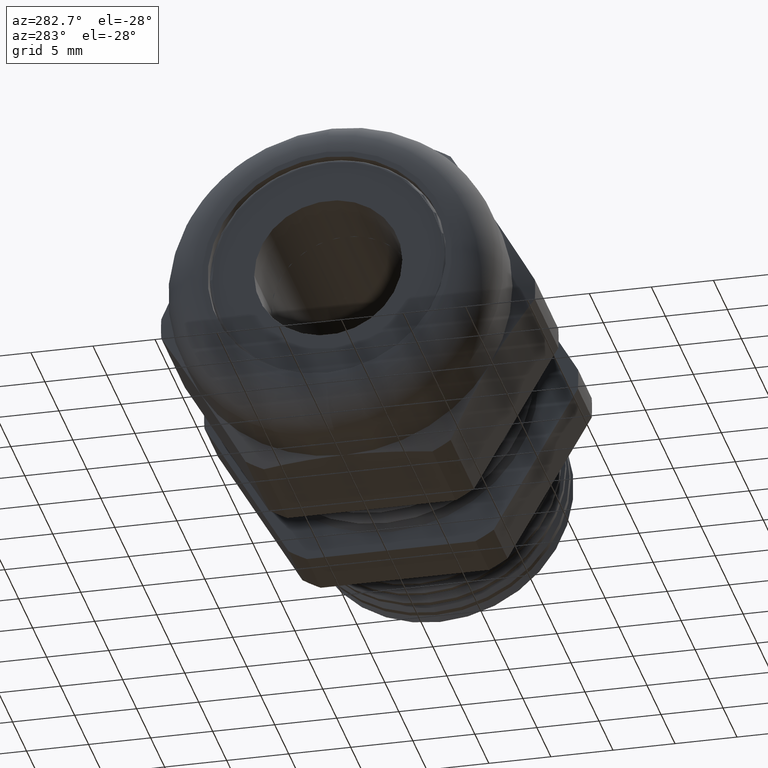
[diagram: clean part render]
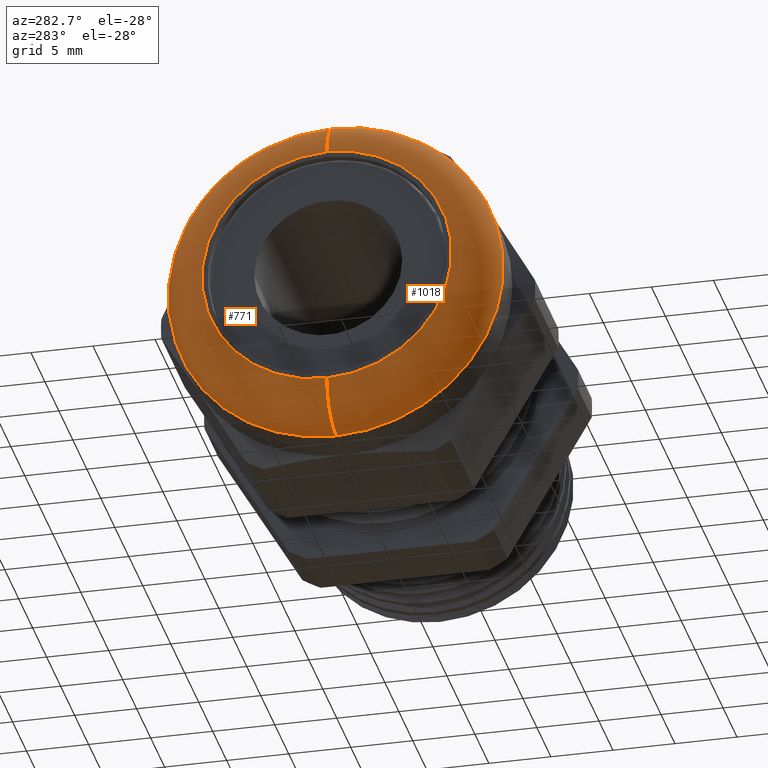
[diagram: same view with one multi-face feature highlighted, each face labeled with its STEP entity id]
A machine part, auxiliary view. The highlighted faces form ONE feature: a constant-radius fillet chain: 2 tangent blend faces with common blend radius 3.3934 mm. The faces share edges in the B-rep.
Their STEP definitions:
[1] entity #771 (Torus):
#765 = VERTEX_POINT ( 'NONE', #2710 ) ;
#769 = EDGE_LOOP ( 'NONE', ( #801, #800, #842, #798 ) ) ;
#771 = ADVANCED_FACE ( 'NONE', ( #2696 ), #2695, .T. ) ;
#798 = ORIENTED_EDGE ( 'NONE', *, *, #799, .F. ) ;
#799 = EDGE_CURVE ( 'NONE', #846, #765, #2765, .T. ) ;
#800 = ORIENTED_EDGE ( 'NONE', *, *, #841, .T. ) ;
#801 = ORIENTED_EDGE ( 'NONE', *, *, #802, .F. ) ;
#802 = EDGE_CURVE ( 'NONE', #803, #846, #2760, .T. ) ;
#803 = VERTEX_POINT ( 'NONE', #2755 ) ;
#833 = VERTEX_POINT ( 'NONE', #2836 ) ;
#841 = EDGE_CURVE ( 'NONE', #803, #833, #2822, .T. ) ;
#842 = ORIENTED_EDGE ( 'NONE', *, *, #849, .F. ) ;
#846 = VERTEX_POINT ( 'NONE', #2813 ) ;
#849 = EDGE_CURVE ( 'NONE', #765, #833, #2871, .T. ) ;
#2691 = DIRECTION ( 'NONE',  ( 0.0000000000000000000, 0.0000000000000000000, -1.000000000000000000 ) ) ;
#2692 = DIRECTION ( 'NONE',  ( 1.000000000000000000, 0.0000000000000000000, 0.0000000000000000000 ) ) ;
#2693 = CARTESIAN_POINT ( 'NONE',  ( -0.9663999999999998100, 0.0000000000000000000, 0.0000000000000000000 ) ) ;
#2694 = AXIS2_PLACEMENT_3D ( 'NONE', #2693, #2692, #2691 ) ;
#2695 = TOROIDAL_SURFACE ( 'NONE', #2694, 0.3963999999999997000, 0.1336000000000001400 ) ;
#2696 = FACE_OUTER_BOUND ( 'NONE', #769, .T. ) ;
#2710 = CARTESIAN_POINT ( 'NONE',  ( -0.9663999999999998100, 6.490628035480970000E-017, -0.5299999999999998000 ) ) ;
#2755 = CARTESIAN_POINT ( 'NONE',  ( -1.100000000000000100, 5.672563973650536600E-017, 0.3963999999999997000 ) ) ;
#2756 = DIRECTION ( 'NONE',  ( 0.0000000000000000000, 0.0000000000000000000, -1.000000000000000000 ) ) ;
#2757 = DIRECTION ( 'NONE',  ( -1.000000000000000000, 0.0000000000000000000, 0.0000000000000000000 ) ) ;
#2758 = CARTESIAN_POINT ( 'NONE',  ( -1.100000000000000100, 0.0000000000000000000, 0.0000000000000000000 ) ) ;
#2759 = AXIS2_PLACEMENT_3D ( 'NONE', #2758, #2757, #2756 ) ;
#2760 = CIRCLE ( 'NONE', #2759, 0.3963999999999997000 ) ;
#2761 = DIRECTION ( 'NONE',  ( 0.0000000000000000000, 0.0000000000000000000, -1.000000000000000000 ) ) ;
#2762 = DIRECTION ( 'NONE',  ( 0.0000000000000000000, -1.000000000000000000, 0.0000000000000000000 ) ) ;
#2763 = CARTESIAN_POINT ( 'NONE',  ( -0.9663999999999998100, 0.0000000000000000000, -0.3963999999999997000 ) ) ;
#2764 = AXIS2_PLACEMENT_3D ( 'NONE', #2763, #2762, #2761 ) ;
#2765 = CIRCLE ( 'NONE', #2764, 0.1336000000000001100 ) ;
#2813 = CARTESIAN_POINT ( 'NONE',  ( -1.100000000000000100, 0.0000000000000000000, -0.3963999999999997000 ) ) ;
#2818 = DIRECTION ( 'NONE',  ( 0.0000000000000000000, 1.224646799147353700E-016, 1.000000000000000000 ) ) ;
#2819 = DIRECTION ( 'NONE',  ( 0.0000000000000000000, 1.000000000000000000, -1.224646799147353200E-016 ) ) ;
#2820 = CARTESIAN_POINT ( 'NONE',  ( -0.9663999999999998100, 4.854499911820104500E-017, 0.3963999999999997000 ) ) ;
#2821 = AXIS2_PLACEMENT_3D ( 'NONE', #2820, #2819, #2818 ) ;
#2822 = CIRCLE ( 'NONE', #2821, 0.1336000000000001100 ) ;
#2836 = CARTESIAN_POINT ( 'NONE',  ( -0.9663999999999998100, 0.0000000000000000000, 0.5299999999999998000 ) ) ;
#2867 = DIRECTION ( 'NONE',  ( 0.0000000000000000000, 0.0000000000000000000, -1.000000000000000000 ) ) ;
#2868 = DIRECTION ( 'NONE',  ( 1.000000000000000000, 0.0000000000000000000, 0.0000000000000000000 ) ) ;
#2869 = CARTESIAN_POINT ( 'NONE',  ( -0.9663999999999998100, 0.0000000000000000000, 0.0000000000000000000 ) ) ;
#2870 = AXIS2_PLACEMENT_3D ( 'NONE', #2869, #2868, #2867 ) ;
#2871 = CIRCLE ( 'NONE', #2870, 0.5299999999999998000 ) ;
[2] entity #1018 (Torus):
#765 = VERTEX_POINT ( 'NONE', #2710 ) ;
#799 = EDGE_CURVE ( 'NONE', #846, #765, #2765, .T. ) ;
#803 = VERTEX_POINT ( 'NONE', #2755 ) ;
#833 = VERTEX_POINT ( 'NONE', #2836 ) ;
#841 = EDGE_CURVE ( 'NONE', #803, #833, #2822, .T. ) ;
#846 = VERTEX_POINT ( 'NONE', #2813 ) ;
#918 = EDGE_CURVE ( 'NONE', #846, #803, #2964, .T. ) ;
#970 = EDGE_CURVE ( 'NONE', #833, #765, #3031, .T. ) ;
#1018 = ADVANCED_FACE ( 'NONE', ( #3090 ), #3089, .T. ) ;
#1019 = EDGE_LOOP ( 'NONE', ( #1020, #1021, #1073, #1074 ) ) ;
#1020 = ORIENTED_EDGE ( 'NONE', *, *, #841, .F. ) ;
#1021 = ORIENTED_EDGE ( 'NONE', *, *, #918, .F. ) ;
#1073 = ORIENTED_EDGE ( 'NONE', *, *, #799, .T. ) ;
#1074 = ORIENTED_EDGE ( 'NONE', *, *, #970, .F. ) ;
#2710 = CARTESIAN_POINT ( 'NONE',  ( -0.9663999999999998100, 6.490628035480970000E-017, -0.5299999999999998000 ) ) ;
#2755 = CARTESIAN_POINT ( 'NONE',  ( -1.100000000000000100, 5.672563973650536600E-017, 0.3963999999999997000 ) ) ;
#2761 = DIRECTION ( 'NONE',  ( 0.0000000000000000000, 0.0000000000000000000, -1.000000000000000000 ) ) ;
#2762 = DIRECTION ( 'NONE',  ( 0.0000000000000000000, -1.000000000000000000, 0.0000000000000000000 ) ) ;
#2763 = CARTESIAN_POINT ( 'NONE',  ( -0.9663999999999998100, 0.0000000000000000000, -0.3963999999999997000 ) ) ;
#2764 = AXIS2_PLACEMENT_3D ( 'NONE', #2763, #2762, #2761 ) ;
#2765 = CIRCLE ( 'NONE', #2764, 0.1336000000000001100 ) ;
#2813 = CARTESIAN_POINT ( 'NONE',  ( -1.100000000000000100, 0.0000000000000000000, -0.3963999999999997000 ) ) ;
#2818 = DIRECTION ( 'NONE',  ( 0.0000000000000000000, 1.224646799147353700E-016, 1.000000000000000000 ) ) ;
#2819 = DIRECTION ( 'NONE',  ( 0.0000000000000000000, 1.000000000000000000, -1.224646799147353200E-016 ) ) ;
#2820 = CARTESIAN_POINT ( 'NONE',  ( -0.9663999999999998100, 4.854499911820104500E-017, 0.3963999999999997000 ) ) ;
#2821 = AXIS2_PLACEMENT_3D ( 'NONE', #2820, #2819, #2818 ) ;
#2822 = CIRCLE ( 'NONE', #2821, 0.1336000000000001100 ) ;
#2836 = CARTESIAN_POINT ( 'NONE',  ( -0.9663999999999998100, 0.0000000000000000000, 0.5299999999999998000 ) ) ;
#2961 = DIRECTION ( 'NONE',  ( 0.0000000000000000000, 0.0000000000000000000, -1.000000000000000000 ) ) ;
#2962 = DIRECTION ( 'NONE',  ( -1.000000000000000000, 0.0000000000000000000, 0.0000000000000000000 ) ) ;
#2963 = AXIS2_PLACEMENT_3D ( 'NONE', #2969, #2962, #2961 ) ;
#2964 = CIRCLE ( 'NONE', #2963, 0.3963999999999997000 ) ;
#2969 = CARTESIAN_POINT ( 'NONE',  ( -1.100000000000000100, 0.0000000000000000000, 0.0000000000000000000 ) ) ;
#3023 = DIRECTION ( 'NONE',  ( 0.0000000000000000000, 0.0000000000000000000, -1.000000000000000000 ) ) ;
#3024 = DIRECTION ( 'NONE',  ( 1.000000000000000000, 0.0000000000000000000, 0.0000000000000000000 ) ) ;
#3025 = CARTESIAN_POINT ( 'NONE',  ( -0.9663999999999998100, 0.0000000000000000000, 0.0000000000000000000 ) ) ;
#3026 = AXIS2_PLACEMENT_3D ( 'NONE', #3025, #3024, #3023 ) ;
#3031 = CIRCLE ( 'NONE', #3026, 0.5299999999999998000 ) ;
#3086 = DIRECTION ( 'NONE',  ( 0.0000000000000000000, 0.0000000000000000000, -1.000000000000000000 ) ) ;
#3087 = DIRECTION ( 'NONE',  ( 1.000000000000000000, 0.0000000000000000000, 0.0000000000000000000 ) ) ;
#3088 = AXIS2_PLACEMENT_3D ( 'NONE', #3094, #3087, #3086 ) ;
#3089 = TOROIDAL_SURFACE ( 'NONE', #3088, 0.3963999999999997000, 0.1336000000000001400 ) ;
#3090 = FACE_OUTER_BOUND ( 'NONE', #1019, .T. ) ;
#3094 = CARTESIAN_POINT ( 'NONE',  ( -0.9663999999999998100, 0.0000000000000000000, 0.0000000000000000000 ) ) ;